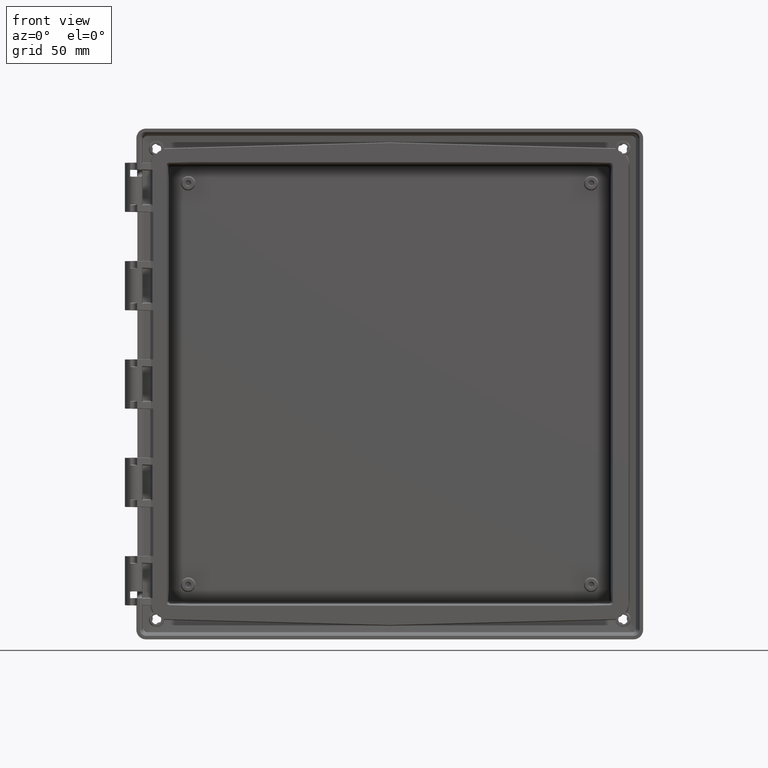
[diagram: clean part render]
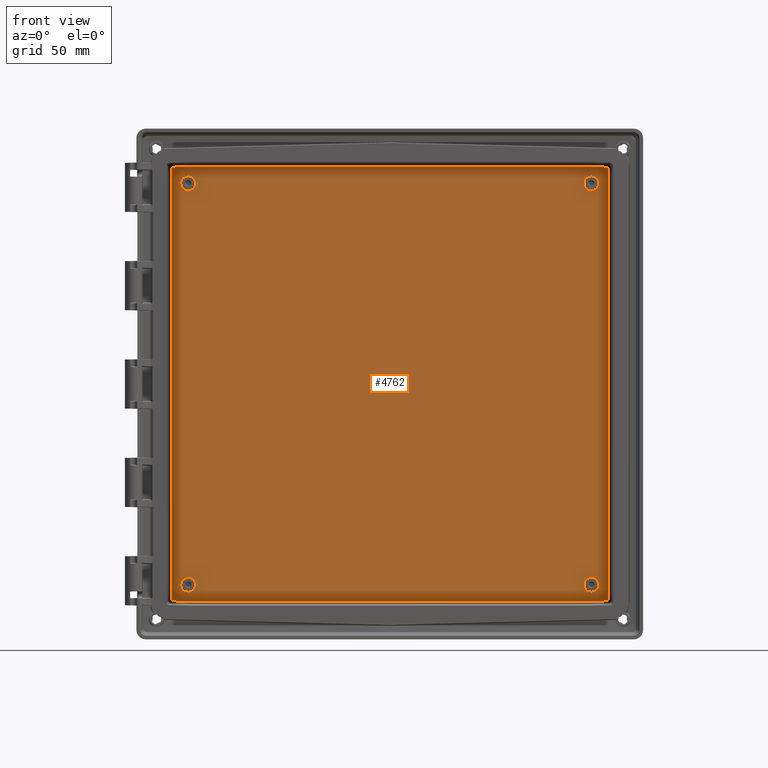
[diagram: same view with one face highlighted and labeled with its STEP entity id]
A machine part, front view. The second image highlights one B-rep face of the part: STEP entity #4762.
In plain terms, the highlighted planar face has unit normal (0, -1, -0).
Its self-contained STEP definition (entity closure, byte-faithful):
#1527 = VERTEX_POINT ( 'NONE', #12133 ) ;
#1534 = VERTEX_POINT ( 'NONE', #12116 ) ;
#1562 = VERTEX_POINT ( 'NONE', #12168 ) ;
#1564 = EDGE_CURVE ( 'NONE', #1562, #1585, #12203, .T. ) ;
#1569 = VERTEX_POINT ( 'NONE', #12218 ) ;
#1575 = VERTEX_POINT ( 'NONE', #12252 ) ;
#1580 = EDGE_CURVE ( 'NONE', #1575, #1527, #12235, .T. ) ;
#1585 = VERTEX_POINT ( 'NONE', #11886 ) ;
#1588 = EDGE_CURVE ( 'NONE', #1534, #1527, #12307, .T. ) ;
#1593 = VERTEX_POINT ( 'NONE', #12300 ) ;
#1596 = EDGE_CURVE ( 'NONE', #1593, #1534, #12329, .T. ) ;
#1624 = EDGE_CURVE ( 'NONE', #1562, #1569, #12391, .T. ) ;
#2882 = EDGE_CURVE ( 'NONE', #1585, #1593, #14303, .T. ) ;
#3038 = EDGE_CURVE ( 'NONE', #6869, #6868, #14802, .T. ) ;
#3079 = EDGE_CURVE ( 'NONE', #6952, #6951, #14941, .T. ) ;
#3104 = VERTEX_POINT ( 'NONE', #15106 ) ;
#3110 = VERTEX_POINT ( 'NONE', #15090 ) ;
#3112 = EDGE_CURVE ( 'NONE', #3110, #3128, #15088, .T. ) ;
#3121 = VERTEX_POINT ( 'NONE', #15191 ) ;
#3128 = VERTEX_POINT ( 'NONE', #15213 ) ;
#3130 = EDGE_CURVE ( 'NONE', #3128, #3121, #15253, .T. ) ;
#3161 = EDGE_CURVE ( 'NONE', #3177, #3104, #15330, .T. ) ;
#3177 = VERTEX_POINT ( 'NONE', #15362 ) ;
#3179 = EDGE_CURVE ( 'NONE', #3177, #3110, #15347, .T. ) ;
#3194 = EDGE_CURVE ( 'NONE', #3214, #1569, #15411, .T. ) ;
#3205 = EDGE_CURVE ( 'NONE', #3121, #3206, #15425, .T. ) ;
#3206 = VERTEX_POINT ( 'NONE', #15424 ) ;
#3213 = EDGE_CURVE ( 'NONE', #3214, #3206, #15446, .T. ) ;
#3214 = VERTEX_POINT ( 'NONE', #15447 ) ;
#4762 = ADVANCED_FACE ( 'NONE', ( #21079, #21078, #21077, #21076, #21075 ), #21131, .T. ) ;
#4763 = EDGE_LOOP ( 'NONE', ( #4764, #4765 ) ) ;
#4764 = ORIENTED_EDGE ( 'NONE', *, *, #32290, .T. ) ;
#4765 = ORIENTED_EDGE ( 'NONE', *, *, #7396, .T. ) ;
#4766 = EDGE_LOOP ( 'NONE', ( #4767, #4768 ) ) ;
#4767 = ORIENTED_EDGE ( 'NONE', *, *, #32122, .T. ) ;
#4768 = ORIENTED_EDGE ( 'NONE', *, *, #7336, .T. ) ;
#4769 = EDGE_LOOP ( 'NONE', ( #4770, #4834 ) ) ;
#4770 = ORIENTED_EDGE ( 'NONE', *, *, #3038, .T. ) ;
#4771 = EDGE_LOOP ( 'NONE', ( #4835, #4836 ) ) ;
#4826 = ORIENTED_EDGE ( 'NONE', *, *, #3194, .F. ) ;
#4827 = ORIENTED_EDGE ( 'NONE', *, *, #3213, .T. ) ;
#4828 = ORIENTED_EDGE ( 'NONE', *, *, #3205, .F. ) ;
#4829 = ORIENTED_EDGE ( 'NONE', *, *, #3130, .F. ) ;
#4830 = ORIENTED_EDGE ( 'NONE', *, *, #3112, .F. ) ;
#4831 = ORIENTED_EDGE ( 'NONE', *, *, #3179, .F. ) ;
#4832 = ORIENTED_EDGE ( 'NONE', *, *, #3161, .T. ) ;
#4834 = ORIENTED_EDGE ( 'NONE', *, *, #6867, .T. ) ;
#4835 = ORIENTED_EDGE ( 'NONE', *, *, #3079, .T. ) ;
#4836 = ORIENTED_EDGE ( 'NONE', *, *, #6950, .T. ) ;
#4837 = EDGE_LOOP ( 'NONE', ( #4838, #4839, #4840, #4841, #4842, #4843, #4844, #4826, #4827, #4828, #4829, #4830, #4831, #4832 ) ) ;
#4838 = ORIENTED_EDGE ( 'NONE', *, *, #4846, .F. ) ;
#4839 = ORIENTED_EDGE ( 'NONE', *, *, #1580, .T. ) ;
#4840 = ORIENTED_EDGE ( 'NONE', *, *, #1588, .F. ) ;
#4841 = ORIENTED_EDGE ( 'NONE', *, *, #1596, .F. ) ;
#4842 = ORIENTED_EDGE ( 'NONE', *, *, #2882, .F. ) ;
#4843 = ORIENTED_EDGE ( 'NONE', *, *, #1564, .F. ) ;
#4844 = ORIENTED_EDGE ( 'NONE', *, *, #1624, .T. ) ;
#4846 = EDGE_CURVE ( 'NONE', #1575, #3104, #21181, .T. ) ;
#6867 = EDGE_CURVE ( 'NONE', #6868, #6869, #24828, .T. ) ;
#6868 = VERTEX_POINT ( 'NONE', #24837 ) ;
#6869 = VERTEX_POINT ( 'NONE', #24827 ) ;
#6950 = EDGE_CURVE ( 'NONE', #6951, #6952, #25148, .T. ) ;
#6951 = VERTEX_POINT ( 'NONE', #25149 ) ;
#6952 = VERTEX_POINT ( 'NONE', #25150 ) ;
#7336 = EDGE_CURVE ( 'NONE', #7407, #7337, #26745, .T. ) ;
#7337 = VERTEX_POINT ( 'NONE', #26746 ) ;
#7396 = EDGE_CURVE ( 'NONE', #7397, #7398, #26884, .T. ) ;
#7397 = VERTEX_POINT ( 'NONE', #26883 ) ;
#7398 = VERTEX_POINT ( 'NONE', #26920 ) ;
#7407 = VERTEX_POINT ( 'NONE', #26975 ) ;
#11886 = CARTESIAN_POINT ( 'NONE',  ( -124.3119224345850000, 30.59999999999999800, -123.2757151033670200 ) ) ;
#12116 = CARTESIAN_POINT ( 'NONE',  ( -124.4535003197780000, 30.59999999999999800, 122.9272232616049900 ) ) ;
#12133 = CARTESIAN_POINT ( 'NONE',  ( -123.9672560892545600, 30.59999999999999800, 123.4263669262824700 ) ) ;
#12168 = CARTESIAN_POINT ( 'NONE',  ( -123.9672560892592500, 30.59999999999999800, -123.4263669262824700 ) ) ;
#12196 = CARTESIAN_POINT ( 'NONE',  ( -124.3119224345850000, 30.59999999999999800, -123.2757151033670200 ) ) ;
#12197 = CARTESIAN_POINT ( 'NONE',  ( -124.2810579176844100, 30.59999999999999400, -123.3070976611522700 ) ) ;
#12198 = CARTESIAN_POINT ( 'NONE',  ( -124.2146760402307100, 30.60000000000000100, -123.3597143620969800 ) ) ;
#12199 = CARTESIAN_POINT ( 'NONE',  ( -124.0949266843192600, 30.59999999999999100, -123.4120324433298900 ) ) ;
#12200 = CARTESIAN_POINT ( 'NONE',  ( -124.0112367187441400, 30.59999999999999800, -123.4250215247466000 ) ) ;
#12201 = CARTESIAN_POINT ( 'NONE',  ( -123.9672560892592500, 30.59999999999999800, -123.4263669262824700 ) ) ;
#12203 = B_SPLINE_CURVE_WITH_KNOTS ( 'NONE', 3,
 ( #12201, #12200, #12199, #12198, #12197, #12196 ),
 .UNSPECIFIED., .F., .F.,
 ( 4, 1, 1, 4 ),
 ( 0.0000000000000000000, 0.0001288513043875802200, 0.0002556918797907721900, 0.0003845825707207984300 ),
 .UNSPECIFIED. ) ;
#12218 = CARTESIAN_POINT ( 'NONE',  ( -113.4455061112983600, 30.59999999999999800, -123.7018886459760000 ) ) ;
#12232 = DIRECTION ( 'NONE',  ( -0.9996573249755572600, 0.0000000000000000000, -0.02617694830787815200 ) ) ;
#12233 = VECTOR ( 'NONE', #12232, 999.9999999999998900 ) ;
#12234 = CARTESIAN_POINT ( 'NONE',  ( -118.7063811002739000, 30.59999999999999800, 123.5641277861292300 ) ) ;
#12235 = LINE ( 'NONE', #12234, #12233 ) ;
#12252 = CARTESIAN_POINT ( 'NONE',  ( -113.4455061112932600, 30.59999999999999800, 123.7018886459760000 ) ) ;
#12278 = CARTESIAN_POINT ( 'NONE',  ( -123.9672560892545600, 30.59999999999999800, 123.4263669262824700 ) ) ;
#12279 = CARTESIAN_POINT ( 'NONE',  ( -124.0108421227357200, 30.59999992671620800, 123.4219951110603100 ) ) ;
#12280 = CARTESIAN_POINT ( 'NONE',  ( -124.0642284296175000, 30.59998542457786300, 123.4126329310829400 ) ) ;
#12281 = CARTESIAN_POINT ( 'NONE',  ( -124.1821994621462300, 30.59996265368295100, 123.3662374159699800 ) ) ;
#12282 = CARTESIAN_POINT ( 'NONE',  ( -124.2470662434932900, 30.59995426880727700, 123.3286192372832200 ) ) ;
#12283 = CARTESIAN_POINT ( 'NONE',  ( -124.3069802468784200, 30.59995426863523700, 123.2670819380026600 ) ) ;
#12284 = CARTESIAN_POINT ( 'NONE',  ( -124.3071146604846000, 30.59995427756814100, 123.2669366035034400 ) ) ;
#12285 = CARTESIAN_POINT ( 'NONE',  ( -124.3090906673301400, 30.59995431327335100, 123.2648766174482800 ) ) ;
#12286 = CARTESIAN_POINT ( 'NONE',  ( -124.3120803367301200, 30.59995439358979800, 123.2617364510501300 ) ) ;
#12287 = CARTESIAN_POINT ( 'NONE',  ( -124.3192281888852500, 30.59995476774724600, 123.2540517113076500 ) ) ;
#12288 = CARTESIAN_POINT ( 'NONE',  ( -124.3256227202148700, 30.59995540569902400, 123.2468295181301600 ) ) ;
#12289 = CARTESIAN_POINT ( 'NONE',  ( -124.3386872038628500, 30.59995708618467300, 123.2314785534050000 ) ) ;
#12290 = CARTESIAN_POINT ( 'NONE',  ( -124.3477684868660200, 30.59995874985675000, 123.2200350446162500 ) ) ;
#12291 = CARTESIAN_POINT ( 'NONE',  ( -124.3753284023686900, 30.59996508144925500, 123.1816103471478400 ) ) ;
#12292 = CARTESIAN_POINT ( 'NONE',  ( -124.3942198174032800, 30.59997115377396800, 123.1504907787873900 ) ) ;
#12293 = CARTESIAN_POINT ( 'NONE',  ( -124.4145919678991400, 30.59997914870520900, 123.1035515565046300 ) ) ;
#12294 = CARTESIAN_POINT ( 'NONE',  ( -124.4193739550683700, 30.59998113729779200, 123.0914774799133900 ) ) ;
#12295 = CARTESIAN_POINT ( 'NONE',  ( -124.4266763619812800, 30.59998438173365500, 123.0709614782035100 ) ) ;
#12296 = CARTESIAN_POINT ( 'NONE',  ( -124.4298389689469700, 30.59998588957240200, 123.0610398071846800 ) ) ;
#12297 = CARTESIAN_POINT ( 'NONE',  ( -124.4381093738035700, 30.59999006879723600, 123.0324295436606000 ) ) ;
#12298 = CARTESIAN_POINT ( 'NONE',  ( -124.4420062840845800, 30.59999239599915600, 123.0149052290813400 ) ) ;
#12300 = CARTESIAN_POINT ( 'NONE',  ( -124.4535003197780000, 30.59999999999999800, -122.9272232616060000 ) ) ;
#12304 = CARTESIAN_POINT ( 'NONE',  ( -124.4506163257515700, 30.59999798333079100, 122.9677246834458200 ) ) ;
#12305 = CARTESIAN_POINT ( 'NONE',  ( -124.4523756181524900, 30.59999984667856800, 122.9435172781678700 ) ) ;
#12306 = CARTESIAN_POINT ( 'NONE',  ( -124.4535003197780000, 30.59999999999999800, 122.9272232616049900 ) ) ;
#12307 = B_SPLINE_CURVE_WITH_KNOTS ( 'NONE', 3,
 ( #12306, #12305, #12304, #12298, #12297, #12296, #12295, #12294, #12293, #12292, #12291, #12290, #12289, #12288, #12287, #12286, #12285, #12284, #12283, #12282, #12281, #12280, #12279, #12278 ),
 .UNSPECIFIED., .F., .F.,
 ( 4, 2, 2, 2, 2, 2, 2, 1, 1, 2, 2, 2, 4 ),
 ( 0.0000000000000000000, 0.1249999999996472500, 0.1874999999995024500, 0.2187499999994571300, 0.2499999999994118000, 0.3749999999992032500, 0.4374999999991213700, 0.4687499999991013900, 0.4843749999991173700, 0.4921874999991508500, 0.4999999999991843200, 0.7499999999995921000, 1.000000000000000000 ),
 .UNSPECIFIED. ) ;
#12326 = DIRECTION ( 'NONE',  ( 0.0000000000000000000, 0.0000000000000000000, 1.000000000000000000 ) ) ;
#12327 = VECTOR ( 'NONE', #12326, 1000.000000000000000 ) ;
#12328 = CARTESIAN_POINT ( 'NONE',  ( -124.4535003197780000, 30.59999999999999800, -5.065392549852276700E-013 ) ) ;
#12329 = LINE ( 'NONE', #12328, #12327 ) ;
#12385 = DIRECTION ( 'NONE',  ( 0.9996573249755571500, 0.0000000000000000000, -0.02617694830787918200 ) ) ;
#12386 = VECTOR ( 'NONE', #12385, 1000.000000000000000 ) ;
#12387 = CARTESIAN_POINT ( 'NONE',  ( -118.7063811002788200, 30.59999999999999800, -123.5641277861292300 ) ) ;
#12391 = LINE ( 'NONE', #12387, #12386 ) ;
#14293 = CARTESIAN_POINT ( 'NONE',  ( -124.4535003197780000, 30.59999999999999800, -122.9272232616060000 ) ) ;
#14294 = CARTESIAN_POINT ( 'NONE',  ( -124.4532999878398800, 30.60000000000000100, -122.9713166392614500 ) ) ;
#14295 = CARTESIAN_POINT ( 'NONE',  ( -124.4424661230733900, 30.59999999999999400, -123.0553998973304700 ) ) ;
#14296 = CARTESIAN_POINT ( 'NONE',  ( -124.3932589847928400, 30.59999999999999800, -123.1764608542529800 ) ) ;
#14297 = CARTESIAN_POINT ( 'NONE',  ( -124.3424263589042800, 30.59999999999999800, -123.2441108200296200 ) ) ;
#14298 = CARTESIAN_POINT ( 'NONE',  ( -124.3119224345850000, 30.59999999999999800, -123.2757151033670200 ) ) ;
#14303 = B_SPLINE_CURVE_WITH_KNOTS ( 'NONE', 3,
 ( #14298, #14297, #14296, #14295, #14294, #14293 ),
 .UNSPECIFIED., .F., .F.,
 ( 4, 1, 1, 4 ),
 ( 0.0000000000000000000, 0.0001286256969238838600, 0.0002554668567458114300, 0.0003845825721197299700 ),
 .UNSPECIFIED. ) ;
#14789 = CARTESIAN_POINT ( 'NONE',  ( 114.7500000000000000, 30.60000000000000100, 110.0671556125964500 ) ) ;
#14790 = CARTESIAN_POINT ( 'NONE',  ( 115.2139259025434900, 30.60000000000000100, 110.0707175609213000 ) ) ;
#14791 = CARTESIAN_POINT ( 'NONE',  ( 116.0900247012520500, 30.60000000000000100, 110.2096243394791800 ) ) ;
#14792 = CARTESIAN_POINT ( 'NONE',  ( 117.3036622821863700, 30.60000000000000100, 110.8349760655702200 ) ) ;
#14793 = CARTESIAN_POINT ( 'NONE',  ( 118.2465816309453100, 30.60000000000000500, 111.7937700044578700 ) ) ;
#14794 = CARTESIAN_POINT ( 'NONE',  ( 118.8487745289157300, 30.59999999999999800, 112.9917617618990700 ) ) ;
#14795 = CARTESIAN_POINT ( 'NONE',  ( 119.0526510000454900, 30.60000000000000100, 114.3172440723050200 ) ) ;
#14796 = CARTESIAN_POINT ( 'NONE',  ( 118.8383528366937600, 30.59999999999999800, 115.6400547522702300 ) ) ;
#14797 = CARTESIAN_POINT ( 'NONE',  ( 118.2291093426102700, 30.59999999999999800, 116.8291189268627200 ) ) ;
#14798 = CARTESIAN_POINT ( 'NONE',  ( 117.2873423866218400, 30.60000000000001200, 117.7753126559558200 ) ) ;
#14799 = CARTESIAN_POINT ( 'NONE',  ( 116.0816868034681000, 30.59999999999999400, 118.3920151684649400 ) ) ;
#14800 = CARTESIAN_POINT ( 'NONE',  ( 115.2116803573269600, 30.60000000000000900, 118.5293551732216200 ) ) ;
#14801 = CARTESIAN_POINT ( 'NONE',  ( 114.7500000000000000, 30.60000000000000100, 118.5328443874035400 ) ) ;
#14802 = B_SPLINE_CURVE_WITH_KNOTS ( 'NONE', 3,
 ( #14801, #14800, #14799, #14798, #14797, #14796, #14795, #14794, #14793, #14792, #14791, #14790, #14789 ),
 .UNSPECIFIED., .F., .F.,
 ( 4, 1, 1, 1, 1, 1, 1, 1, 1, 1, 4 ),
 ( 0.0000000000000000000, 0.001336172355024017600, 0.002662245945109110500, 0.003971357387798746300, 0.005283179838787769100, 0.006605105878817337500, 0.007926289166284780600, 0.009241207763608982900, 0.01056176399086728800, 0.01190107501762819300, 0.01324324364178452000 ),
 .UNSPECIFIED. ) ;
#14941 = B_SPLINE_CURVE_WITH_KNOTS ( 'NONE', 3,
 ( #14972, #14971, #14970, #14969, #14968, #14967, #14966, #14965, #14964, #14963, #14962, #14961, #14960 ),
 .UNSPECIFIED., .F., .F.,
 ( 4, 1, 1, 1, 1, 1, 1, 1, 1, 1, 4 ),
 ( 0.0000000000000000000, 0.001336170975049366600, 0.002662239487400773200, 0.003971341906226373200, 0.005283152191282326100, 0.006605063685648469900, 0.007926231823170343200, 0.009241136680444933500, 0.01056168214215529900, 0.01190098711050690600, 0.01324315415126927500 ),
 .UNSPECIFIED. ) ;
#14960 = CARTESIAN_POINT ( 'NONE',  ( 114.7500000000000000, 30.59999999999999800, -118.5328443874035400 ) ) ;
#14961 = CARTESIAN_POINT ( 'NONE',  ( 115.2139259998007600, 30.59999999999999800, -118.5292803724726300 ) ) ;
#14962 = CARTESIAN_POINT ( 'NONE',  ( 116.0900215758648800, 30.59999999999999100, -118.3903683652125400 ) ) ;
#14963 = CARTESIAN_POINT ( 'NONE',  ( 117.3036438236290600, 30.60000000000000100, -117.7649996961782600 ) ) ;
#14964 = CARTESIAN_POINT ( 'NONE',  ( 118.2465470456645700, 30.59999999999999100, -116.8062060610072600 ) ) ;
#14965 = CARTESIAN_POINT ( 'NONE',  ( 118.8487274637823500, 30.60000000000000100, -115.6082233355156300 ) ) ;
#14966 = CARTESIAN_POINT ( 'NONE',  ( 119.0525994640728600, 30.59999999999998700, -114.2827560488970100 ) ) ;
#14967 = CARTESIAN_POINT ( 'NONE',  ( 118.8383098948030600, 30.59999999999999400, -112.9599590967234000 ) ) ;
#14968 = CARTESIAN_POINT ( 'NONE',  ( 118.2290804175725300, 30.59999999999999100, -111.7709012637937900 ) ) ;
#14969 = CARTESIAN_POINT ( 'NONE',  ( 117.2873270654193800, 30.60000000000000500, -110.8247075043015000 ) ) ;
#14970 = CARTESIAN_POINT ( 'NONE',  ( 116.0816840373387900, 30.59999999999999800, -110.2079914829309600 ) ) ;
#14971 = CARTESIAN_POINT ( 'NONE',  ( 115.2116803640092300, 30.59999999999999400, -110.0706467869113100 ) ) ;
#14972 = CARTESIAN_POINT ( 'NONE',  ( 114.7500000000000000, 30.59999999999999800, -110.0671556125964500 ) ) ;
#15086 = VECTOR ( 'NONE', #15132, 1000.000000000000000 ) ;
#15087 = CARTESIAN_POINT ( 'NONE',  ( 124.4535003197779900, 30.59999999999999800, 6.938893903907228400E-015 ) ) ;
#15088 = LINE ( 'NONE', #15087, #15086 ) ;
#15090 = CARTESIAN_POINT ( 'NONE',  ( 124.4535003197779900, 30.59999999999999800, 122.9272232616049900 ) ) ;
#15106 = CARTESIAN_POINT ( 'NONE',  ( 113.4455061112867300, 30.59999999999999800, 123.7018886459760000 ) ) ;
#15116 = CARTESIAN_POINT ( 'NONE',  ( 124.3990179759154600, 30.59996265368295800, 123.1436669858443500 ) ) ;
#15117 = CARTESIAN_POINT ( 'NONE',  ( 124.3631107024213000, 30.59995426880728400, 123.2094962680889300 ) ) ;
#15118 = CARTESIAN_POINT ( 'NONE',  ( 124.3031628562005300, 30.59995426863524400, 123.2710005991489500 ) ) ;
#15119 = CARTESIAN_POINT ( 'NONE',  ( 124.3030210900263900, 30.59995427756814100, 123.2711387711242100 ) ) ;
#15120 = CARTESIAN_POINT ( 'NONE',  ( 124.3010135356910600, 30.59995431327334000, 123.2731680250048500 ) ) ;
#15121 = CARTESIAN_POINT ( 'NONE',  ( 124.2979527057489500, 30.59995439358978000, 123.2762388699146100 ) ) ;
#15122 = CARTESIAN_POINT ( 'NONE',  ( 124.2904577082839800, 30.59995476774725600, 123.2835854357575000 ) ) ;
#15123 = CARTESIAN_POINT ( 'NONE',  ( 124.2834053792543600, 30.59995540569903100, 123.2901668308444800 ) ) ;
#15124 = CARTESIAN_POINT ( 'NONE',  ( 124.2684016631783000, 30.59995708618468800, 123.3036286790686400 ) ) ;
#15125 = CARTESIAN_POINT ( 'NONE',  ( 124.2571997960466900, 30.59995874985676400, 123.3130064062882700 ) ) ;
#15126 = CARTESIAN_POINT ( 'NONE',  ( 124.2195097002303000, 30.59996508144926600, 123.3415627189949100 ) ) ;
#15127 = CARTESIAN_POINT ( 'NONE',  ( 124.1888953154262400, 30.59997115377401800, 123.3612622756720900 ) ) ;
#15128 = CARTESIAN_POINT ( 'NONE',  ( 124.1425054589804800, 30.59997914870524500, 123.3828561706454700 ) ) ;
#15129 = CARTESIAN_POINT ( 'NONE',  ( 124.1305606976137500, 30.59998113729784900, 123.3879525816673900 ) ) ;
#15130 = CARTESIAN_POINT ( 'NONE',  ( 124.1102428809119400, 30.59998438173371600, 123.3957895325583800 ) ) ;
#15132 = DIRECTION ( 'NONE',  ( 0.0000000000000000000, 0.0000000000000000000, -1.000000000000000000 ) ) ;
#15191 = CARTESIAN_POINT ( 'NONE',  ( 124.3119224345850000, 30.59999999999999800, -123.2757151033670200 ) ) ;
#15213 = CARTESIAN_POINT ( 'NONE',  ( 124.4535003197779900, 30.59999999999999800, -122.9272232616049800 ) ) ;
#15244 = CARTESIAN_POINT ( 'NONE',  ( 124.3119224345850000, 30.59999999999999800, -123.2757151033670200 ) ) ;
#15245 = CARTESIAN_POINT ( 'NONE',  ( 124.3424862994882700, 30.60000000000000100, -123.2440396633723500 ) ) ;
#15246 = CARTESIAN_POINT ( 'NONE',  ( 124.3933472950290600, 30.60000000000000500, -123.1763031886689800 ) ) ;
#15247 = CARTESIAN_POINT ( 'NONE',  ( 124.4425127754625300, 30.59999999999999400, -123.0552253401617400 ) ) ;
#15248 = CARTESIAN_POINT ( 'NONE',  ( 124.4533066579424600, 30.59999999999999400, -122.9712240385339200 ) ) ;
#15249 = CARTESIAN_POINT ( 'NONE',  ( 124.4535003197779900, 30.59999999999999800, -122.9272232616049800 ) ) ;
#15253 = B_SPLINE_CURVE_WITH_KNOTS ( 'NONE', 3,
 ( #15249, #15248, #15247, #15246, #15245, #15244 ),
 .UNSPECIFIED., .F., .F.,
 ( 4, 1, 1, 4 ),
 ( 0.0000000000000000000, 0.0001288513043900911500, 0.0002556918797932907400, 0.0003845825707242606700 ),
 .UNSPECIFIED. ) ;
#15327 = DIRECTION ( 'NONE',  ( -0.9996573249755571500, 0.0000000000000000000, 0.02617694830787838400 ) ) ;
#15328 = VECTOR ( 'NONE', #15327, 1000.000000000000100 ) ;
#15329 = CARTESIAN_POINT ( 'NONE',  ( 118.7063811002726400, 30.59999999999999800, 123.5641277861291100 ) ) ;
#15330 = LINE ( 'NONE', #15329, #15328 ) ;
#15336 = CARTESIAN_POINT ( 'NONE',  ( 124.1004073971829300, 30.59998588957245100, 123.3992107748514700 ) ) ;
#15337 = CARTESIAN_POINT ( 'NONE',  ( 124.0720234315977400, 30.59999006879729300, 123.4082272750438100 ) ) ;
#15338 = CARTESIAN_POINT ( 'NONE',  ( 124.0546071313658100, 30.59999239599920200, 123.4125815830251600 ) ) ;
#15339 = CARTESIAN_POINT ( 'NONE',  ( 124.0076681379355500, 30.59999798333080500, 123.4224237169338100 ) ) ;
#15340 = CARTESIAN_POINT ( 'NONE',  ( 123.9835150808930800, 30.59999984667859300, 123.4248160824459600 ) ) ;
#15341 = CARTESIAN_POINT ( 'NONE',  ( 123.9672560892585400, 30.59999999999999800, 123.4263669262821800 ) ) ;
#15347 = B_SPLINE_CURVE_WITH_KNOTS ( 'NONE', 3,
 ( #15341, #15340, #15339, #15338, #15337, #15336, #15130, #15129, #15128, #15127, #15126, #15125, #15124, #15123, #15122, #15121, #15120, #15119, #15118, #15117, #15116, #15393, #15392, #15391 ),
 .UNSPECIFIED., .F., .F.,
 ( 4, 2, 2, 2, 2, 2, 2, 1, 1, 2, 2, 2, 4 ),
 ( 0.0000000000000000000, 0.1250000000002521900, 0.1875000000003573000, 0.2187500000004098400, 0.2500000000004624100, 0.3750000000006752900, 0.4375000000007817100, 0.4687500000008564800, 0.4843750000009438000, 0.4921875000009350900, 0.5000000000009263700, 0.7500000000004631900, 1.000000000000000000 ),
 .UNSPECIFIED. ) ;
#15362 = CARTESIAN_POINT ( 'NONE',  ( 123.9672560892585400, 30.59999999999999800, 123.4263669262821800 ) ) ;
#15391 = CARTESIAN_POINT ( 'NONE',  ( 124.4535003197779900, 30.59999999999999800, 122.9272232616049900 ) ) ;
#15392 = CARTESIAN_POINT ( 'NONE',  ( 124.4502709520143400, 30.59999992671623700, 122.9709088000139000 ) ) ;
#15393 = CARTESIAN_POINT ( 'NONE',  ( 124.4423094708205500, 30.59998542457788400, 123.0245218860399500 ) ) ;
#15407 = DIRECTION ( 'NONE',  ( -1.000000000000000000, 0.0000000000000000000, 0.0000000000000000000 ) ) ;
#15408 = VECTOR ( 'NONE', #15407, 1000.000000000000000 ) ;
#15409 = CARTESIAN_POINT ( 'NONE',  ( 3.799738301779598300E-011, 30.59999999999999800, -123.7018886459760000 ) ) ;
#15411 = LINE ( 'NONE', #15409, #15408 ) ;
#15418 = CARTESIAN_POINT ( 'NONE',  ( 123.9672560892429700, 30.59999999999999800, -123.4263669262850300 ) ) ;
#15419 = CARTESIAN_POINT ( 'NONE',  ( 124.0113291131254100, 30.59999999999999100, -123.4250124329279900 ) ) ;
#15420 = CARTESIAN_POINT ( 'NONE',  ( 124.0950999604487800, 30.60000000000000100, -123.4119812375552100 ) ) ;
#15421 = CARTESIAN_POINT ( 'NONE',  ( 124.2148313400941100, 30.59999999999999800, -123.3596219549187800 ) ) ;
#15422 = CARTESIAN_POINT ( 'NONE',  ( 124.2811274808965200, 30.59999999999999400, -123.3070358784442400 ) ) ;
#15423 = CARTESIAN_POINT ( 'NONE',  ( 124.3119224345850000, 30.59999999999999800, -123.2757151033670200 ) ) ;
#15424 = CARTESIAN_POINT ( 'NONE',  ( 123.9672560892429700, 30.59999999999999800, -123.4263669262850300 ) ) ;
#15425 = B_SPLINE_CURVE_WITH_KNOTS ( 'NONE', 3,
 ( #15423, #15422, #15421, #15420, #15419, #15418 ),
 .UNSPECIFIED., .F., .F.,
 ( 4, 1, 1, 4 ),
 ( 0.0000000000000000000, 0.0001286256969228537900, 0.0002554668567451399800, 0.0003845825721337195400 ),
 .UNSPECIFIED. ) ;
#15443 = DIRECTION ( 'NONE',  ( 0.9996573249755574800, 0.0000000000000000000, 0.02617694830786483600 ) ) ;
#15444 = VECTOR ( 'NONE', #15443, 1000.000000000000200 ) ;
#15445 = CARTESIAN_POINT ( 'NONE',  ( 118.7063811003086600, 30.59999999999999800, -123.5641277861305100 ) ) ;
#15446 = LINE ( 'NONE', #15445, #15444 ) ;
#15447 = CARTESIAN_POINT ( 'NONE',  ( 113.4455061113743600, 30.59999999999999800, -123.7018886459760000 ) ) ;
#21075 = FACE_OUTER_BOUND ( 'NONE', #4837, .T. ) ;
#21076 = FACE_BOUND ( 'NONE', #4771, .T. ) ;
#21077 = FACE_BOUND ( 'NONE', #4769, .T. ) ;
#21078 = FACE_BOUND ( 'NONE', #4766, .T. ) ;
#21079 = FACE_BOUND ( 'NONE', #4763, .T. ) ;
#21126 = DIRECTION ( 'NONE',  ( 0.0000000000000000000, 0.0000000000000000000, -1.000000000000000000 ) ) ;
#21127 = DIRECTION ( 'NONE',  ( 0.0000000000000000000, -1.000000000000000000, -0.0000000000000000000 ) ) ;
#21128 = CARTESIAN_POINT ( 'NONE',  ( -78.65000000000000600, 30.59999999999999800, 129.5000000000000000 ) ) ;
#21129 = AXIS2_PLACEMENT_3D ( 'NONE', #21128, #21127, #21126 ) ;
#21131 = PLANE ( 'NONE',  #21129 ) ;
#21178 = DIRECTION ( 'NONE',  ( 1.000000000000000000, 0.0000000000000000000, 0.0000000000000000000 ) ) ;
#21179 = VECTOR ( 'NONE', #21178, 1000.000000000000000 ) ;
#21180 = CARTESIAN_POINT ( 'NONE',  ( -3.261280134836397300E-012, 30.59999999999999800, 123.7018886459760000 ) ) ;
#21181 = LINE ( 'NONE', #21180, #21179 ) ;
#24827 = CARTESIAN_POINT ( 'NONE',  ( 114.7500000000000000, 30.60000000000000100, 118.5328443874035400 ) ) ;
#24828 = B_SPLINE_CURVE_WITH_KNOTS ( 'NONE', 3,
 ( #24869, #24868, #24867, #24866, #24865, #24864, #24863, #24862, #24861, #24860, #24859, #24858, #24857 ),
 .UNSPECIFIED., .F., .F.,
 ( 4, 1, 1, 1, 1, 1, 1, 1, 1, 1, 4 ),
 ( 0.0000000000000000000, 0.001336172355023137900, 0.002662245945108041000, 0.003971357387798049800, 0.005283179838787743900, 0.006605105878817175300, 0.007926289166284534300, 0.009241207763609506800, 0.01056176399086825400, 0.01190107501762908300, 0.01324324364178454400 ),
 .UNSPECIFIED. ) ;
#24837 = CARTESIAN_POINT ( 'NONE',  ( 114.7500000000000000, 30.60000000000000100, 110.0671556125964500 ) ) ;
#24857 = CARTESIAN_POINT ( 'NONE',  ( 114.7500000000000000, 30.60000000000000100, 118.5328443874035400 ) ) ;
#24858 = CARTESIAN_POINT ( 'NONE',  ( 114.2860740974568300, 30.60000000000000100, 118.5292824390786700 ) ) ;
#24859 = CARTESIAN_POINT ( 'NONE',  ( 113.4099752987485500, 30.60000000000000100, 118.3903756605209500 ) ) ;
#24860 = CARTESIAN_POINT ( 'NONE',  ( 112.1963377178142700, 30.60000000000000100, 117.7650239344303000 ) ) ;
#24861 = CARTESIAN_POINT ( 'NONE',  ( 111.2534183690548600, 30.60000000000000100, 116.8062299955425200 ) ) ;
#24862 = CARTESIAN_POINT ( 'NONE',  ( 110.6512254710842300, 30.59999999999999800, 115.6082382381009500 ) ) ;
#24863 = CARTESIAN_POINT ( 'NONE',  ( 110.4473489999545400, 30.60000000000000500, 114.2827559276948200 ) ) ;
#24864 = CARTESIAN_POINT ( 'NONE',  ( 110.6616471633063000, 30.60000000000000100, 112.9599452477294500 ) ) ;
#24865 = CARTESIAN_POINT ( 'NONE',  ( 111.2708906573900500, 30.60000000000000100, 111.7708810731367400 ) ) ;
#24866 = CARTESIAN_POINT ( 'NONE',  ( 112.2126576133788900, 30.59999999999999800, 110.8246873440436500 ) ) ;
#24867 = CARTESIAN_POINT ( 'NONE',  ( 113.4183131965325800, 30.60000000000000100, 110.2079848315348900 ) ) ;
#24868 = CARTESIAN_POINT ( 'NONE',  ( 114.2883196426734100, 30.60000000000000100, 110.0706448267783800 ) ) ;
#24869 = CARTESIAN_POINT ( 'NONE',  ( 114.7500000000000000, 30.60000000000000100, 110.0671556125964500 ) ) ;
#25132 = CARTESIAN_POINT ( 'NONE',  ( 114.7500000000000000, 30.59999999999999800, -110.0671556125964500 ) ) ;
#25133 = CARTESIAN_POINT ( 'NONE',  ( 114.2860740001999500, 30.59999999999999400, -110.0707196275273800 ) ) ;
#25134 = CARTESIAN_POINT ( 'NONE',  ( 113.4099784241364800, 30.59999999999999100, -110.2096316347870900 ) ) ;
#25135 = CARTESIAN_POINT ( 'NONE',  ( 112.1963561763726000, 30.59999999999999800, -110.8350003038205500 ) ) ;
#25136 = CARTESIAN_POINT ( 'NONE',  ( 111.2534529543361700, 30.59999999999999400, -111.7937939389912700 ) ) ;
#25137 = CARTESIAN_POINT ( 'NONE',  ( 110.6512725362180000, 30.60000000000000100, -112.9917766644834000 ) ) ;
#25138 = CARTESIAN_POINT ( 'NONE',  ( 110.4474005359271300, 30.60000000000000100, -114.3172439511022000 ) ) ;
#25139 = CARTESIAN_POINT ( 'NONE',  ( 110.6616901051966400, 30.60000000000000100, -115.6400409032758000 ) ) ;
#25140 = CARTESIAN_POINT ( 'NONE',  ( 111.2709195824268800, 30.60000000000000100, -116.8290987362053400 ) ) ;
#25141 = CARTESIAN_POINT ( 'NONE',  ( 112.2126729345796700, 30.59999999999999800, -117.7752924956978100 ) ) ;
#25142 = CARTESIAN_POINT ( 'NONE',  ( 113.4183159626605000, 30.60000000000000500, -118.3920085170688900 ) ) ;
#25143 = CARTESIAN_POINT ( 'NONE',  ( 114.2883196359904000, 30.59999999999999800, -118.5293532130886500 ) ) ;
#25144 = CARTESIAN_POINT ( 'NONE',  ( 114.7500000000000000, 30.59999999999999800, -118.5328443874035400 ) ) ;
#25148 = B_SPLINE_CURVE_WITH_KNOTS ( 'NONE', 3,
 ( #25144, #25143, #25142, #25141, #25140, #25139, #25138, #25137, #25136, #25135, #25134, #25133, #25132 ),
 .UNSPECIFIED., .F., .F.,
 ( 4, 1, 1, 1, 1, 1, 1, 1, 1, 1, 4 ),
 ( 0.0000000000000000000, 0.001336170975050417400, 0.002662239487401995800, 0.003971341906227361100, 0.005283152191283188200, 0.006605063685649148100, 0.007926231823171116900, 0.009241136680446595400, 0.01056168214215763400, 0.01190098711050885900, 0.01324315415126931300 ),
 .UNSPECIFIED. ) ;
#25149 = CARTESIAN_POINT ( 'NONE',  ( 114.7500000000000000, 30.59999999999999800, -118.5328443874035400 ) ) ;
#25150 = CARTESIAN_POINT ( 'NONE',  ( 114.7500000000000000, 30.59999999999999800, -110.0671556125964500 ) ) ;
#26730 = CARTESIAN_POINT ( 'NONE',  ( -114.7500000000000000, 30.59999999999999800, -110.0671556125964500 ) ) ;
#26731 = CARTESIAN_POINT ( 'NONE',  ( -115.2139259998003200, 30.60000000000000100, -110.0707196275273800 ) ) ;
#26732 = CARTESIAN_POINT ( 'NONE',  ( -116.0900215758639300, 30.59999999999999400, -110.2096316347871900 ) ) ;
#26733 = CARTESIAN_POINT ( 'NONE',  ( -117.3036438236276200, 30.59999999999999800, -110.8350003038208600 ) ) ;
#26734 = CARTESIAN_POINT ( 'NONE',  ( -118.2465470456635500, 30.59999999999999800, -111.7937939389911300 ) ) ;
#26735 = CARTESIAN_POINT ( 'NONE',  ( -118.8487274637818000, 30.59999999999999800, -112.9917766644826300 ) ) ;
#26736 = CARTESIAN_POINT ( 'NONE',  ( -119.0525994640729300, 30.59999999999999800, -114.3172439511012500 ) ) ;
#26737 = CARTESIAN_POINT ( 'NONE',  ( -118.8383098948035700, 30.60000000000000900, -115.6400409032752200 ) ) ;
#26738 = CARTESIAN_POINT ( 'NONE',  ( -118.2290804175733600, 30.59999999999999100, -116.8290987362050400 ) ) ;
#26739 = CARTESIAN_POINT ( 'NONE',  ( -117.2873270654205000, 30.59999999999999800, -117.7752924956977300 ) ) ;
#26740 = CARTESIAN_POINT ( 'NONE',  ( -116.0816840373396800, 30.60000000000000100, -118.3920085170688200 ) ) ;
#26741 = CARTESIAN_POINT ( 'NONE',  ( -115.2116803640096900, 30.60000000000000100, -118.5293532130886400 ) ) ;
#26742 = CARTESIAN_POINT ( 'NONE',  ( -114.7500000000000000, 30.59999999999999800, -118.5328443874035400 ) ) ;
#26745 = B_SPLINE_CURVE_WITH_KNOTS ( 'NONE', 3,
 ( #26742, #26741, #26740, #26739, #26738, #26737, #26736, #26735, #26734, #26733, #26732, #26731, #26730 ),
 .UNSPECIFIED., .F., .F.,
 ( 4, 1, 1, 1, 1, 1, 1, 1, 1, 1, 4 ),
 ( 0.0000000000000000000, 0.001336170975050624500, 0.002662239487402228200, 0.003971341906227613500, 0.005283152191283656600, 0.006605063685650145600, 0.007926231823172206300, 0.009241136680446827800, 0.01056168214215706300, 0.01190098711050811100, 0.01324315415126927100 ),
 .UNSPECIFIED. ) ;
#26746 = CARTESIAN_POINT ( 'NONE',  ( -114.7500000000000000, 30.59999999999999800, -110.0671556125964500 ) ) ;
#26883 = CARTESIAN_POINT ( 'NONE',  ( -114.7500000000000000, 30.59999999999999800, 110.0671556125964500 ) ) ;
#26884 = B_SPLINE_CURVE_WITH_KNOTS ( 'NONE', 3,
 ( #26914, #26913, #26912, #26911, #26910, #26909, #26908, #26907, #26906, #26905, #26904, #26903, #26902 ),
 .UNSPECIFIED., .F., .F.,
 ( 4, 1, 1, 1, 1, 1, 1, 1, 1, 1, 4 ),
 ( 0.0000000000000000000, 0.001336170975050374000, 0.002662239487401853100, 0.003971341906227148600, 0.005283152191282938400, 0.006605063685649203600, 0.007926231823171143000, 0.009241136680445719400, 0.01056168214215596700, 0.01190098711050730600, 0.01324315415126928500 ),
 .UNSPECIFIED. ) ;
#26902 = CARTESIAN_POINT ( 'NONE',  ( -114.7500000000000000, 30.59999999999999800, 118.5328443874035400 ) ) ;
#26903 = CARTESIAN_POINT ( 'NONE',  ( -115.2139259998005900, 30.59999999999999400, 118.5292803724726000 ) ) ;
#26904 = CARTESIAN_POINT ( 'NONE',  ( -116.0900215758646000, 30.59999999999999800, 118.3903683652126800 ) ) ;
#26905 = CARTESIAN_POINT ( 'NONE',  ( -117.3036438236285100, 30.60000000000000500, 117.7649996961785600 ) ) ;
#26906 = CARTESIAN_POINT ( 'NONE',  ( -118.2465470456641400, 30.59999999999998700, 116.8062060610079000 ) ) ;
#26907 = CARTESIAN_POINT ( 'NONE',  ( -118.8487274637821000, 30.59999999999999800, 115.6082233355163400 ) ) ;
#26908 = CARTESIAN_POINT ( 'NONE',  ( -119.0525994640729400, 30.60000000000000100, 114.2827560488977800 ) ) ;
#26909 = CARTESIAN_POINT ( 'NONE',  ( -118.8383098948033200, 30.59999999999999800, 112.9599590967241100 ) ) ;
#26910 = CARTESIAN_POINT ( 'NONE',  ( -118.2290804175730000, 30.59999999999999100, 111.7709012637944700 ) ) ;
#26911 = CARTESIAN_POINT ( 'NONE',  ( -117.2873270654201700, 30.59999999999999400, 110.8247075043021300 ) ) ;
#26912 = CARTESIAN_POINT ( 'NONE',  ( -116.0816840373394600, 30.59999999999999400, 110.2079914829310600 ) ) ;
#26913 = CARTESIAN_POINT ( 'NONE',  ( -115.2116803640096100, 30.60000000000000100, 110.0706467869113300 ) ) ;
#26914 = CARTESIAN_POINT ( 'NONE',  ( -114.7500000000000000, 30.59999999999999800, 110.0671556125964500 ) ) ;
#26920 = CARTESIAN_POINT ( 'NONE',  ( -114.7500000000000000, 30.59999999999999800, 118.5328443874035400 ) ) ;
#26975 = CARTESIAN_POINT ( 'NONE',  ( -114.7500000000000000, 30.59999999999999800, -118.5328443874035400 ) ) ;
#32122 = EDGE_CURVE ( 'NONE', #7337, #7407, #33128, .T. ) ;
#32290 = EDGE_CURVE ( 'NONE', #7398, #7397, #33186, .T. ) ;
#33112 = CARTESIAN_POINT ( 'NONE',  ( -114.7500000000000000, 30.59999999999999800, -118.5328443874035400 ) ) ;
#33113 = CARTESIAN_POINT ( 'NONE',  ( -114.2860740001992500, 30.59999999999999400, -118.5292803724726000 ) ) ;
#33114 = CARTESIAN_POINT ( 'NONE',  ( -113.4099784241351300, 30.59999999999999400, -118.3903683652125900 ) ) ;
#33115 = CARTESIAN_POINT ( 'NONE',  ( -112.1963561763711800, 30.59999999999999800, -117.7649996961783100 ) ) ;
#33116 = CARTESIAN_POINT ( 'NONE',  ( -111.2534529543355600, 30.60000000000000500, -116.8062060610075700 ) ) ;
#33117 = CARTESIAN_POINT ( 'NONE',  ( -110.6512725362176900, 30.59999999999999400, -115.6082233355158700 ) ) ;
#33118 = CARTESIAN_POINT ( 'NONE',  ( -110.4474005359270900, 30.60000000000000100, -114.2827560488971400 ) ) ;
#33119 = CARTESIAN_POINT ( 'NONE',  ( -110.6616901051969700, 30.60000000000000500, -112.9599590967233400 ) ) ;
#33120 = CARTESIAN_POINT ( 'NONE',  ( -111.2709195824274800, 30.59999999999999100, -111.7709012637937000 ) ) ;
#33121 = CARTESIAN_POINT ( 'NONE',  ( -112.2126729345806400, 30.59999999999999800, -110.8247075043014900 ) ) ;
#33122 = CARTESIAN_POINT ( 'NONE',  ( -113.4183159626612400, 30.59999999999999800, -110.2079914829309800 ) ) ;
#33123 = CARTESIAN_POINT ( 'NONE',  ( -114.2883196359907300, 30.59999999999999400, -110.0706467869113400 ) ) ;
#33124 = CARTESIAN_POINT ( 'NONE',  ( -114.7500000000000000, 30.59999999999999800, -110.0671556125964500 ) ) ;
#33128 = B_SPLINE_CURVE_WITH_KNOTS ( 'NONE', 3,
 ( #33124, #33123, #33122, #33121, #33120, #33119, #33118, #33117, #33116, #33115, #33114, #33113, #33112 ),
 .UNSPECIFIED., .F., .F.,
 ( 4, 1, 1, 1, 1, 1, 1, 1, 1, 1, 4 ),
 ( 0.0000000000000000000, 0.001336170975049471300, 0.002662239487400766300, 0.003971341906226209300, 0.005283152191282188200, 0.006605063685648532300, 0.007926231823170709300, 0.009241136680445297800, 0.01056168214215549800, 0.01190098711050695800, 0.01324315415126929700 ),
 .UNSPECIFIED. ) ;
#33172 = CARTESIAN_POINT ( 'NONE',  ( -114.7500000000000000, 30.59999999999999800, 110.0671556125964500 ) ) ;
#33173 = CARTESIAN_POINT ( 'NONE',  ( -114.2860740001993800, 30.59999999999999400, 110.0707196275273800 ) ) ;
#33174 = CARTESIAN_POINT ( 'NONE',  ( -113.4099784241354200, 30.59999999999999800, 110.2096316347873400 ) ) ;
#33175 = CARTESIAN_POINT ( 'NONE',  ( -112.1963561763715400, 30.60000000000000100, 110.8350003038214500 ) ) ;
#33176 = CARTESIAN_POINT ( 'NONE',  ( -111.2534529543358700, 30.60000000000000100, 111.7937939389920700 ) ) ;
#33177 = CARTESIAN_POINT ( 'NONE',  ( -110.6512725362178500, 30.59999999999999400, 112.9917766644835400 ) ) ;
#33178 = CARTESIAN_POINT ( 'NONE',  ( -110.4474005359271200, 30.59999999999999800, 114.3172439511021800 ) ) ;
#33179 = CARTESIAN_POINT ( 'NONE',  ( -110.6616901051966600, 30.59999999999999800, 115.6400409032758500 ) ) ;
#33180 = CARTESIAN_POINT ( 'NONE',  ( -111.2709195824269400, 30.60000000000000100, 116.8290987362054800 ) ) ;
#33181 = CARTESIAN_POINT ( 'NONE',  ( -112.2126729345797700, 30.59999999999999800, 117.7752924956978400 ) ) ;
#33182 = CARTESIAN_POINT ( 'NONE',  ( -113.4183159626605000, 30.59999999999999400, 118.3920085170689200 ) ) ;
#33183 = CARTESIAN_POINT ( 'NONE',  ( -114.2883196359904000, 30.60000000000000100, 118.5293532130886800 ) ) ;
#33184 = CARTESIAN_POINT ( 'NONE',  ( -114.7500000000000000, 30.59999999999999800, 118.5328443874035400 ) ) ;
#33186 = B_SPLINE_CURVE_WITH_KNOTS ( 'NONE', 3,
 ( #33184, #33183, #33182, #33181, #33180, #33179, #33178, #33177, #33176, #33175, #33174, #33173, #33172 ),
 .UNSPECIFIED., .F., .F.,
 ( 4, 1, 1, 1, 1, 1, 1, 1, 1, 1, 4 ),
 ( 0.0000000000000000000, 0.001336170975050399200, 0.002662239487401903000, 0.003971341906227218900, 0.005283152191283009600, 0.006605063685649255700, 0.007926231823171193300, 0.009241136680445788700, 0.01056168214215602600, 0.01190098711050731200, 0.01324315415126931000 ),
 .UNSPECIFIED. ) ;